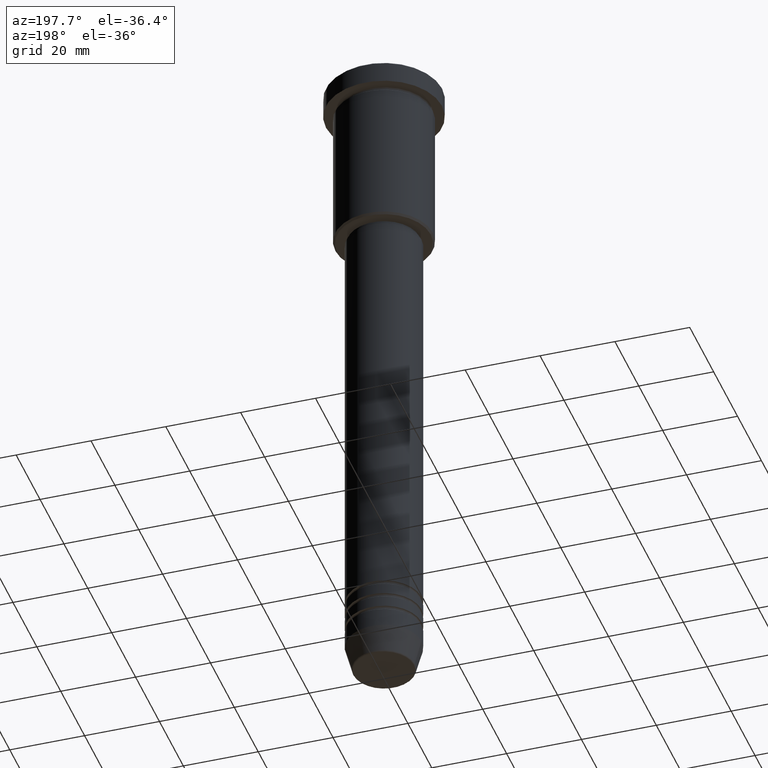
[diagram: clean part render]
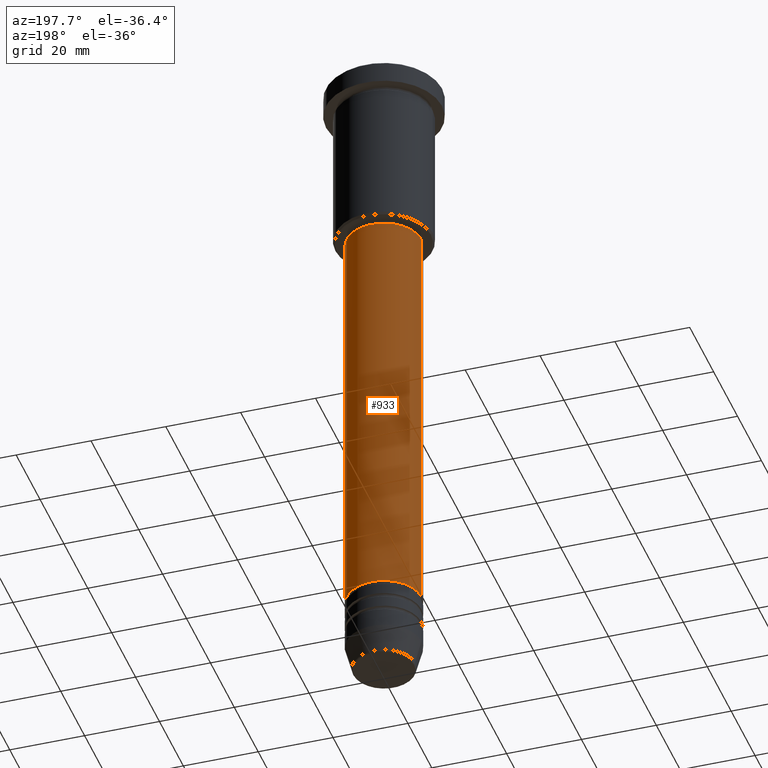
[diagram: same view with one face highlighted and labeled with its STEP entity id]
A machine part, auxiliary view. The second image highlights one B-rep face of the part: STEP entity #933.
In plain terms, the highlighted cylindrical surface (partial cylindrical patch) has radius 10 mm, axis along (-0, -0, 1).
Its self-contained STEP definition (entity closure, byte-faithful):
#2 = ORIENTED_EDGE ( 'NONE', *, *, #842, .T. ) ;
#36 = CYLINDRICAL_SURFACE ( 'NONE', #733, 10.00000000000000000 ) ;
#51 = EDGE_CURVE ( 'NONE', #650, #555, #936, .T. ) ;
#60 = DIRECTION ( 'NONE',  ( 1.000000000000000000, 0.000000000000000000, 0.000000000000000000 ) ) ;
#114 = CARTESIAN_POINT ( 'NONE',  ( 0.000000000000000000, 0.000000000000000000, -47.00000000000000711 ) ) ;
#119 = EDGE_LOOP ( 'NONE', ( #2, #1109, #724, #384 ) ) ;
#161 = LINE ( 'NONE', #518, #717 ) ;
#189 = DIRECTION ( 'NONE',  ( 1.000000000000000000, 0.000000000000000000, 0.000000000000000000 ) ) ;
#227 = CARTESIAN_POINT ( 'NONE',  ( 0.000000000000000000, 0.000000000000000000, -159.9999999999999147 ) ) ;
#253 = CARTESIAN_POINT ( 'NONE',  ( 9.999999999999998224, 0.000000000000000000, -47.00000000000000711 ) ) ;
#367 = CARTESIAN_POINT ( 'NONE',  ( -9.999999999999998224, 1.224646799147353256E-15, -47.00000000000000711 ) ) ;
#384 = ORIENTED_EDGE ( 'NONE', *, *, #478, .F. ) ;
#406 = DIRECTION ( 'NONE',  ( -0.000000000000000000, -0.000000000000000000, 1.000000000000000000 ) ) ;
#430 = CIRCLE ( 'NONE', #755, 9.999999999999998224 ) ;
#478 = EDGE_CURVE ( 'NONE', #596, #960, #161, .T. ) ;
#485 = DIRECTION ( 'NONE',  ( -0.000000000000000000, -0.000000000000000000, 1.000000000000000000 ) ) ;
#496 = FACE_OUTER_BOUND ( 'NONE', #119, .T. ) ;
#518 = CARTESIAN_POINT ( 'NONE',  ( 10.00000000000000000, 0.000000000000000000, 0.000000000000000000 ) ) ;
#555 = VERTEX_POINT ( 'NONE', #367 ) ;
#596 = VERTEX_POINT ( 'NONE', #1077 ) ;
#615 = DIRECTION ( 'NONE',  ( -0.000000000000000000, -0.000000000000000000, 1.000000000000000000 ) ) ;
#650 = VERTEX_POINT ( 'NONE', #805 ) ;
#717 = VECTOR ( 'NONE', #615, 1000.000000000000000 ) ;
#724 = ORIENTED_EDGE ( 'NONE', *, *, #1121, .F. ) ;
#733 = AXIS2_PLACEMENT_3D ( 'NONE', #862, #406, #1071 ) ;
#755 = AXIS2_PLACEMENT_3D ( 'NONE', #114, #930, #189 ) ;
#766 = DIRECTION ( 'NONE',  ( -0.000000000000000000, -0.000000000000000000, 1.000000000000000000 ) ) ;
#805 = CARTESIAN_POINT ( 'NONE',  ( -10.00000000000000178, 1.224646799147353454E-15, -159.9999999999999147 ) ) ;
#842 = EDGE_CURVE ( 'NONE', #596, #650, #1063, .T. ) ;
#862 = CARTESIAN_POINT ( 'NONE',  ( 0.000000000000000000, 0.000000000000000000, 0.000000000000000000 ) ) ;
#930 = DIRECTION ( 'NONE',  ( -0.000000000000000000, -0.000000000000000000, 1.000000000000000000 ) ) ;
#933 = ADVANCED_FACE ( 'NONE', ( #496 ), #36, .T. ) ;
#936 = LINE ( 'NONE', #1048, #1171 ) ;
#960 = VERTEX_POINT ( 'NONE', #253 ) ;
#1038 = AXIS2_PLACEMENT_3D ( 'NONE', #227, #766, #60 ) ;
#1048 = CARTESIAN_POINT ( 'NONE',  ( -10.00000000000000000, 1.224646799147353256E-15, 0.000000000000000000 ) ) ;
#1063 = CIRCLE ( 'NONE', #1038, 10.00000000000000178 ) ;
#1071 = DIRECTION ( 'NONE',  ( 1.000000000000000000, 0.000000000000000000, 0.000000000000000000 ) ) ;
#1077 = CARTESIAN_POINT ( 'NONE',  ( 10.00000000000000178, 0.000000000000000000, -159.9999999999999147 ) ) ;
#1109 = ORIENTED_EDGE ( 'NONE', *, *, #51, .T. ) ;
#1121 = EDGE_CURVE ( 'NONE', #960, #555, #430, .T. ) ;
#1171 = VECTOR ( 'NONE', #485, 1000.000000000000000 ) ;